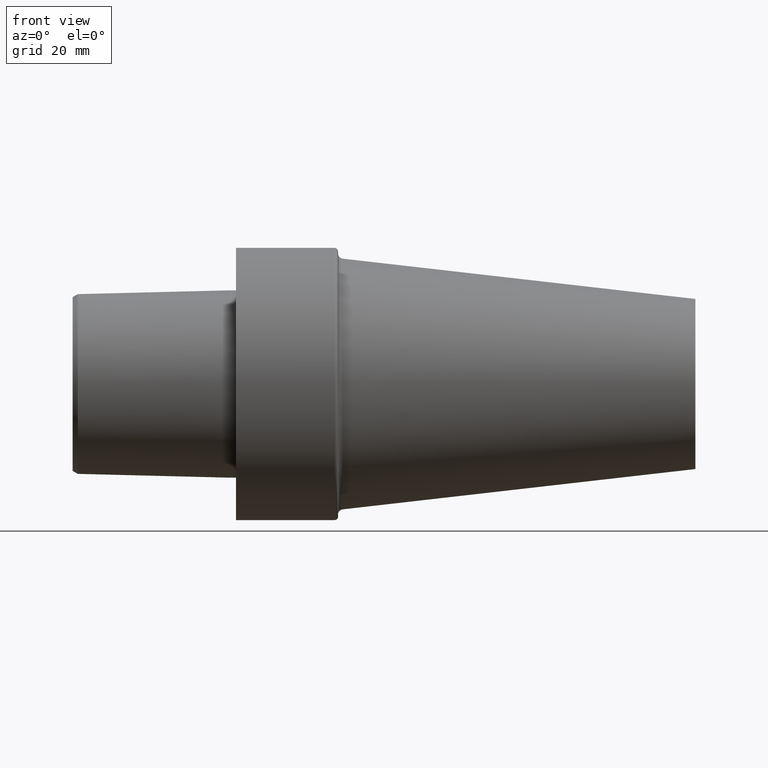
[diagram: clean part render]
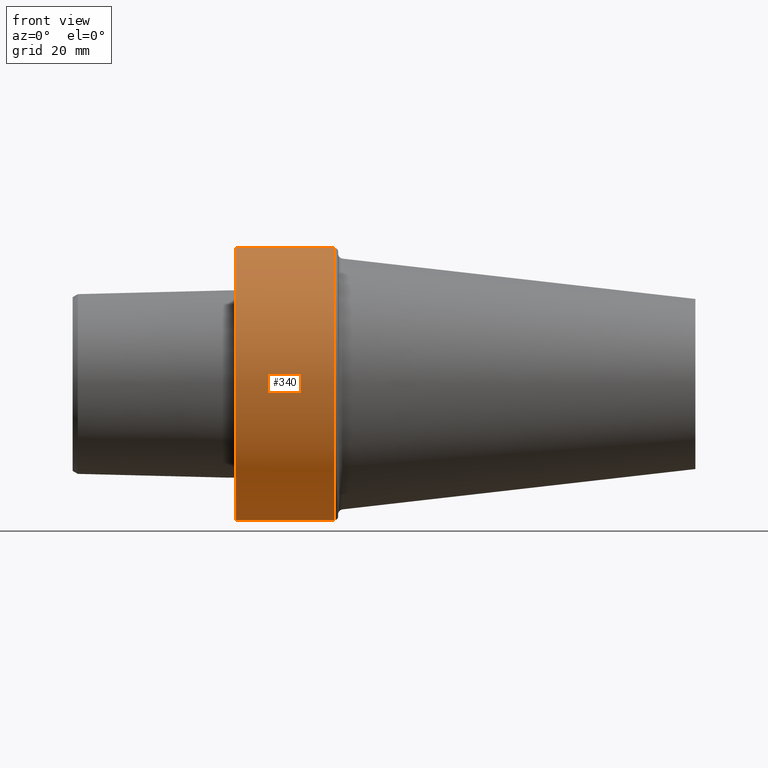
[diagram: same view with one face highlighted and labeled with its STEP entity id]
A machine part, front view. The second image highlights one B-rep face of the part: STEP entity #340.
In plain terms, the highlighted cylindrical surface (partial cylindrical patch) has radius 39.9925 mm, axis along (-1, 0, 0).
Its self-contained STEP definition (entity closure, byte-faithful):
#21 = EDGE_CURVE ( 'NONE', #297, #247, #300, .T. ) ;
#58 = AXIS2_PLACEMENT_3D ( 'NONE', #528, #320, #116 ) ;
#72 = CARTESIAN_POINT ( 'NONE',  ( 0.000000000000000000, 0.000000000000000000, 39.99249995920764889 ) ) ;
#75 = LINE ( 'NONE', #284, #213 ) ;
#97 = AXIS2_PLACEMENT_3D ( 'NONE', #245, #380, #501 ) ;
#101 = ORIENTED_EDGE ( 'NONE', *, *, #353, .F. ) ;
#116 = DIRECTION ( 'NONE',  ( 0.000000000000000000, 0.000000000000000000, 1.000000000000000000 ) ) ;
#167 = ORIENTED_EDGE ( 'NONE', *, *, #303, .T. ) ;
#176 = ORIENTED_EDGE ( 'NONE', *, *, #21, .F. ) ;
#186 = DIRECTION ( 'NONE',  ( 0.000000000000000000, 0.000000000000000000, 1.000000000000000000 ) ) ;
#196 = EDGE_CURVE ( 'NONE', #440, #247, #75, .T. ) ;
#210 = CARTESIAN_POINT ( 'NONE',  ( 28.99999997041999933, 4.897668706494425201E-15, -39.99249995920764889 ) ) ;
#213 = VECTOR ( 'NONE', #447, 1000.000000000000000 ) ;
#242 = CARTESIAN_POINT ( 'NONE',  ( 28.99999997041999933, 0.000000000000000000, 39.99249995920764889 ) ) ;
#245 = CARTESIAN_POINT ( 'NONE',  ( -47.99999995373141815, 0.000000000000000000, 0.000000000000000000 ) ) ;
#247 = VERTEX_POINT ( 'NONE', #72 ) ;
#258 = CIRCLE ( 'NONE', #58, 39.99249995920764889 ) ;
#261 = DIRECTION ( 'NONE',  ( -1.000000000000000000, 0.000000000000000000, 0.000000000000000000 ) ) ;
#274 = AXIS2_PLACEMENT_3D ( 'NONE', #437, #261, #186 ) ;
#284 = CARTESIAN_POINT ( 'NONE',  ( -47.99999995373141815, 0.000000000000000000, 39.99249995920764889 ) ) ;
#297 = VERTEX_POINT ( 'NONE', #484 ) ;
#300 = CIRCLE ( 'NONE', #274, 39.99249995920764889 ) ;
#303 = EDGE_CURVE ( 'NONE', #419, #440, #258, .T. ) ;
#320 = DIRECTION ( 'NONE',  ( -1.000000000000000000, 0.000000000000000000, 0.000000000000000000 ) ) ;
#325 = VECTOR ( 'NONE', #334, 1000.000000000000000 ) ;
#334 = DIRECTION ( 'NONE',  ( -1.000000000000000000, 0.000000000000000000, 0.000000000000000000 ) ) ;
#340 = ADVANCED_FACE ( 'NONE', ( #342 ), #503, .T. ) ;
#342 = FACE_OUTER_BOUND ( 'NONE', #388, .T. ) ;
#353 = EDGE_CURVE ( 'NONE', #419, #297, #497, .T. ) ;
#380 = DIRECTION ( 'NONE',  ( -1.000000000000000000, 0.000000000000000000, 0.000000000000000000 ) ) ;
#388 = EDGE_LOOP ( 'NONE', ( #101, #167, #400, #176 ) ) ;
#400 = ORIENTED_EDGE ( 'NONE', *, *, #196, .T. ) ;
#419 = VERTEX_POINT ( 'NONE', #210 ) ;
#437 = CARTESIAN_POINT ( 'NONE',  ( 0.000000000000000000, 0.000000000000000000, 0.000000000000000000 ) ) ;
#440 = VERTEX_POINT ( 'NONE', #242 ) ;
#447 = DIRECTION ( 'NONE',  ( -1.000000000000000000, 0.000000000000000000, 0.000000000000000000 ) ) ;
#484 = CARTESIAN_POINT ( 'NONE',  ( 0.000000000000000000, 4.897668706494425201E-15, -39.99249995920764889 ) ) ;
#497 = LINE ( 'NONE', #536, #325 ) ;
#501 = DIRECTION ( 'NONE',  ( 0.000000000000000000, 0.000000000000000000, 1.000000000000000000 ) ) ;
#503 = CYLINDRICAL_SURFACE ( 'NONE', #97, 39.99249995920764889 ) ;
#528 = CARTESIAN_POINT ( 'NONE',  ( 28.99999997041999933, 0.000000000000000000, 0.000000000000000000 ) ) ;
#536 = CARTESIAN_POINT ( 'NONE',  ( -47.99999995373141815, 4.897668706494425201E-15, -39.99249995920764889 ) ) ;